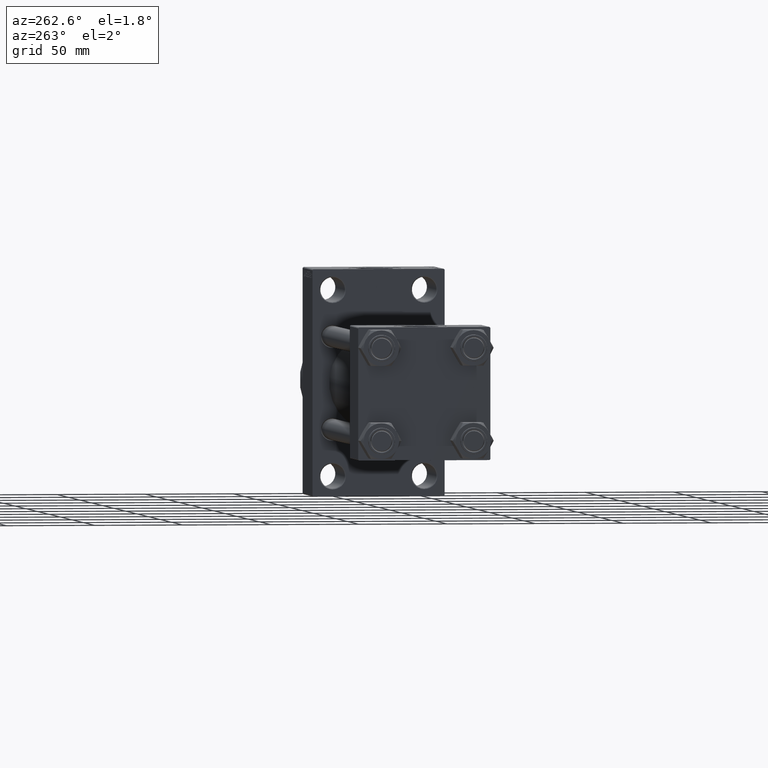
[diagram: clean part render]
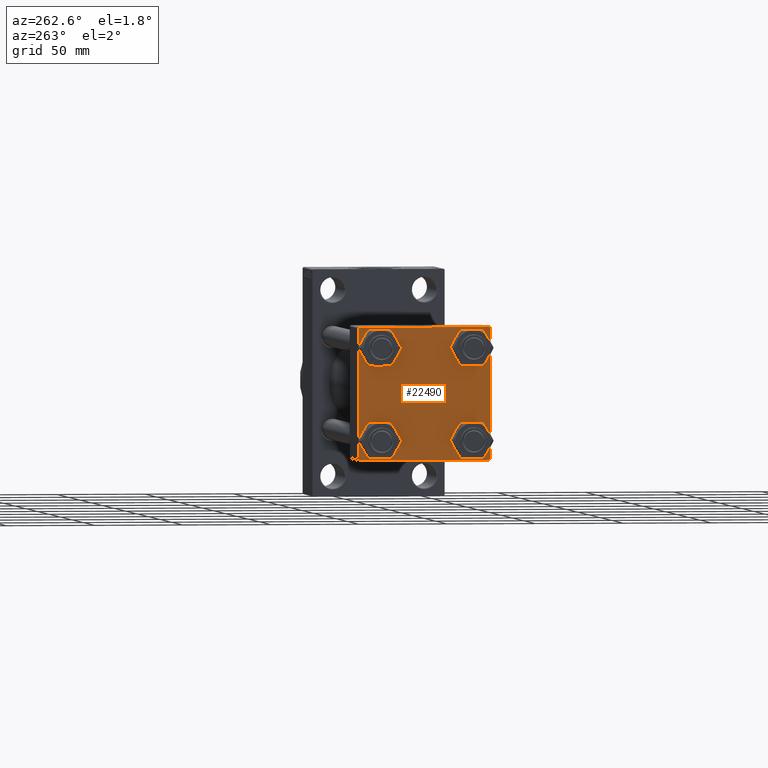
[diagram: same view with one face highlighted and labeled with its STEP entity id]
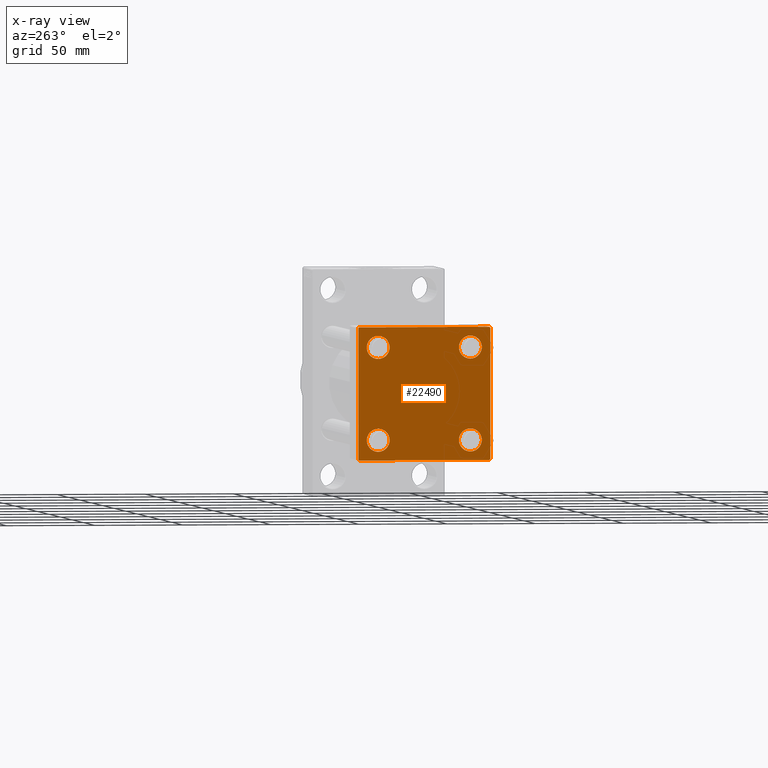
[diagram: x-ray of the same camera — body ghosted, the highlighted face saturated]
A machine part, auxiliary view. The second image highlights one B-rep face of the part: STEP entity #22490.
The next image is the same camera in x-ray: the body ghosted, the highlighted face saturated — about 0% of this face is hidden behind the body in this view.
In plain terms, the highlighted planar face has unit normal (-1, 0, 0).
Its self-contained STEP definition (entity closure, byte-faithful):
#503 = ORIENTED_EDGE ( 'NONE', *, *, #21971, .T. ) ;
#591 = CARTESIAN_POINT ( 'NONE',  ( -0.000000000000000000, -37.25000000000000000, 37.25000000000000000 ) ) ;
#804 = CARTESIAN_POINT ( 'NONE',  ( 0.000000000000000000, 37.24999999999999289, 37.24999999999999289 ) ) ;
#984 = CARTESIAN_POINT ( 'NONE',  ( 0.000000000000000000, 37.24999999999998579, -37.24999999999998579 ) ) ;
#1006 = EDGE_LOOP ( 'NONE', ( #4173, #27967 ) ) ;
#1472 = CARTESIAN_POINT ( 'NONE',  ( 0.000000000000000000, -26.14999999999999147, 26.15000000000000924 ) ) ;
#2064 = CARTESIAN_POINT ( 'NONE',  ( 0.000000000000000000, 37.49999999999999289, 37.50000000000000000 ) ) ;
#2426 = VERTEX_POINT ( 'NONE', #34218 ) ;
#3048 = ORIENTED_EDGE ( 'NONE', *, *, #31005, .T. ) ;
#3216 = AXIS2_PLACEMENT_3D ( 'NONE', #7047, #31184, #19744 ) ;
#4173 = ORIENTED_EDGE ( 'NONE', *, *, #48396, .T. ) ;
#4238 = DIRECTION ( 'NONE',  ( 0.000000000000000000, -1.000000000000000000, -9.251858538542972814E-17 ) ) ;
#4349 = DIRECTION ( 'NONE',  ( 0.000000000000000000, 0.000000000000000000, 1.000000000000000000 ) ) ;
#5038 = LINE ( 'NONE', #984, #25295 ) ;
#5102 = VERTEX_POINT ( 'NONE', #5643 ) ;
#5136 = CARTESIAN_POINT ( 'NONE',  ( 0.000000000000000000, -37.00000000000000711, 37.49999999999999289 ) ) ;
#5423 = CIRCLE ( 'NONE', #11925, 6.500000000000023093 ) ;
#5643 = CARTESIAN_POINT ( 'NONE',  ( 0.000000000000000000, 36.99999999999999289, 37.50000000000000000 ) ) ;
#5647 = CIRCLE ( 'NONE', #3216, 6.500000000000015987 ) ;
#5989 = ORIENTED_EDGE ( 'NONE', *, *, #42637, .T. ) ;
#6054 = VERTEX_POINT ( 'NONE', #19715 ) ;
#6074 = EDGE_LOOP ( 'NONE', ( #3048, #43371, #27669, #11724, #35175, #5989, #19296, #503 ) ) ;
#6772 = EDGE_CURVE ( 'NONE', #35332, #18292, #5647, .T. ) ;
#7047 = CARTESIAN_POINT ( 'NONE',  ( 0.000000000000000000, -26.14999999999999147, -26.15000000000000924 ) ) ;
#7497 = FACE_BOUND ( 'NONE', #47197, .T. ) ;
#8235 = VERTEX_POINT ( 'NONE', #17307 ) ;
#8774 = CARTESIAN_POINT ( 'NONE',  ( 0.000000000000000000, 37.49999999999999289, 37.50000000000000000 ) ) ;
#9216 = CIRCLE ( 'NONE', #43288, 6.500000000000023093 ) ;
#9868 = EDGE_CURVE ( 'NONE', #18292, #35332, #17086, .T. ) ;
#11051 = CIRCLE ( 'NONE', #48394, 6.500000000000023093 ) ;
#11127 = DIRECTION ( 'NONE',  ( 0.000000000000000000, 0.000000000000000000, 1.000000000000000000 ) ) ;
#11228 = DIRECTION ( 'NONE',  ( 1.000000000000000000, -0.000000000000000000, 0.000000000000000000 ) ) ;
#11724 = ORIENTED_EDGE ( 'NONE', *, *, #47566, .T. ) ;
#11925 = AXIS2_PLACEMENT_3D ( 'NONE', #31491, #30736, #46237 ) ;
#12053 = EDGE_LOOP ( 'NONE', ( #23452, #21699 ) ) ;
#12213 = EDGE_CURVE ( 'NONE', #33745, #34449, #5038, .T. ) ;
#12289 = CARTESIAN_POINT ( 'NONE',  ( 0.000000000000000000, -37.24999999999975842, -37.25000000000027001 ) ) ;
#12956 = CARTESIAN_POINT ( 'NONE',  ( 0.000000000000000000, 26.14999999999999858, -26.15000000000000213 ) ) ;
#13535 = CARTESIAN_POINT ( 'NONE',  ( 0.000000000000000000, 37.49999999999999289, -36.99999999999998579 ) ) ;
#14287 = CARTESIAN_POINT ( 'NONE',  ( 0.000000000000000000, -26.14999999999999147, 26.15000000000000924 ) ) ;
#14366 = FACE_BOUND ( 'NONE', #1006, .T. ) ;
#14403 = EDGE_LOOP ( 'NONE', ( #30084, #39954 ) ) ;
#15022 = CARTESIAN_POINT ( 'NONE',  ( 0.000000000000000000, -26.14999999999999147, 32.65000000000003411 ) ) ;
#15498 = VECTOR ( 'NONE', #4238, 1000.000000000000000 ) ;
#15600 = CIRCLE ( 'NONE', #37545, 6.500000000000015987 ) ;
#16077 = DIRECTION ( 'NONE',  ( -0.000000000000000000, 0.7071067811865474617, 0.7071067811865474617 ) ) ;
#16219 = DIRECTION ( 'NONE',  ( 0.000000000000000000, 0.000000000000000000, 1.000000000000000000 ) ) ;
#16419 = CARTESIAN_POINT ( 'NONE',  ( 0.000000000000000000, -26.14999999999999147, 19.64999999999999147 ) ) ;
#16965 = DIRECTION ( 'NONE',  ( 1.000000000000000000, -0.000000000000000000, 0.000000000000000000 ) ) ;
#17086 = CIRCLE ( 'NONE', #43074, 6.500000000000015987 ) ;
#17307 = CARTESIAN_POINT ( 'NONE',  ( 0.000000000000000000, 26.14999999999999858, 32.65000000000002700 ) ) ;
#17666 = EDGE_CURVE ( 'NONE', #2426, #20734, #15600, .T. ) ;
#18104 = DIRECTION ( 'NONE',  ( 0.000000000000000000, 0.000000000000000000, 1.000000000000000000 ) ) ;
#18186 = DIRECTION ( 'NONE',  ( -0.000000000000000000, 0.000000000000000000, 1.000000000000000000 ) ) ;
#18250 = VECTOR ( 'NONE', #38431, 1000.000000000000114 ) ;
#18275 = VECTOR ( 'NONE', #33073, 1000.000000000000000 ) ;
#18292 = VERTEX_POINT ( 'NONE', #31166 ) ;
#19172 = CARTESIAN_POINT ( 'NONE',  ( 0.000000000000000000, 26.14999999999999858, -26.15000000000000213 ) ) ;
#19296 = ORIENTED_EDGE ( 'NONE', *, *, #32482, .F. ) ;
#19577 = EDGE_CURVE ( 'NONE', #25111, #36257, #9216, .T. ) ;
#19715 = CARTESIAN_POINT ( 'NONE',  ( 0.000000000000000000, 37.49999999999999289, 37.00000000000000000 ) ) ;
#19744 = DIRECTION ( 'NONE',  ( 0.000000000000000000, 0.000000000000000000, 1.000000000000000000 ) ) ;
#19973 = LINE ( 'NONE', #8774, #43473 ) ;
#20734 = VERTEX_POINT ( 'NONE', #45609 ) ;
#21107 = DIRECTION ( 'NONE',  ( 1.000000000000000000, -0.000000000000000000, 0.000000000000000000 ) ) ;
#21623 = LINE ( 'NONE', #45240, #42543 ) ;
#21699 = ORIENTED_EDGE ( 'NONE', *, *, #6772, .T. ) ;
#21971 = EDGE_CURVE ( 'NONE', #5102, #6054, #23179, .T. ) ;
#22490 = ADVANCED_FACE ( 'NONE', ( #7497, #45626, #14366, #49447, #23000 ), #26064, .T. ) ;
#23000 = FACE_OUTER_BOUND ( 'NONE', #6074, .T. ) ;
#23179 = LINE ( 'NONE', #804, #18250 ) ;
#23452 = ORIENTED_EDGE ( 'NONE', *, *, #9868, .T. ) ;
#23913 = AXIS2_PLACEMENT_3D ( 'NONE', #41571, #41817, #18186 ) ;
#24295 = CARTESIAN_POINT ( 'NONE',  ( 0.000000000000000000, -26.14999999999999147, -32.65000000000002700 ) ) ;
#25111 = VERTEX_POINT ( 'NONE', #15022 ) ;
#25295 = VECTOR ( 'NONE', #47495, 1000.000000000000114 ) ;
#25434 = DIRECTION ( 'NONE',  ( 0.000000000000000000, 9.251858538542971581E-17, -1.000000000000000000 ) ) ;
#26064 = PLANE ( 'NONE',  #23913 ) ;
#26534 = ORIENTED_EDGE ( 'NONE', *, *, #19577, .T. ) ;
#26850 = VECTOR ( 'NONE', #35670, 1000.000000000000000 ) ;
#27353 = LINE ( 'NONE', #43592, #15498 ) ;
#27475 = VECTOR ( 'NONE', #16077, 1000.000000000000114 ) ;
#27669 = ORIENTED_EDGE ( 'NONE', *, *, #47286, .T. ) ;
#27967 = ORIENTED_EDGE ( 'NONE', *, *, #17666, .T. ) ;
#28131 = CIRCLE ( 'NONE', #31373, 6.500000000000023093 ) ;
#28520 = AXIS2_PLACEMENT_3D ( 'NONE', #19172, #37150, #40976 ) ;
#28919 = VERTEX_POINT ( 'NONE', #30675 ) ;
#30006 = EDGE_CURVE ( 'NONE', #40563, #28919, #21623, .T. ) ;
#30084 = ORIENTED_EDGE ( 'NONE', *, *, #34942, .T. ) ;
#30198 = CARTESIAN_POINT ( 'NONE',  ( 0.000000000000000000, -26.14999999999999147, -26.15000000000000924 ) ) ;
#30675 = CARTESIAN_POINT ( 'NONE',  ( 0.000000000000000000, -37.50000000000000000, -37.00000000000003553 ) ) ;
#30736 = DIRECTION ( 'NONE',  ( 1.000000000000000000, -0.000000000000000000, 0.000000000000000000 ) ) ;
#31005 = EDGE_CURVE ( 'NONE', #6054, #33745, #49568, .T. ) ;
#31166 = CARTESIAN_POINT ( 'NONE',  ( 0.000000000000000000, -26.14999999999999147, -19.64999999999999503 ) ) ;
#31184 = DIRECTION ( 'NONE',  ( 1.000000000000000000, -0.000000000000000000, 0.000000000000000000 ) ) ;
#31373 = AXIS2_PLACEMENT_3D ( 'NONE', #32290, #21107, #32801 ) ;
#31491 = CARTESIAN_POINT ( 'NONE',  ( 0.000000000000000000, 26.14999999999999858, 26.15000000000000213 ) ) ;
#31586 = CARTESIAN_POINT ( 'NONE',  ( 0.000000000000000000, -37.00000000000002132, -37.50000000000000711 ) ) ;
#32290 = CARTESIAN_POINT ( 'NONE',  ( 0.000000000000000000, 26.14999999999999858, 26.15000000000000213 ) ) ;
#32482 = EDGE_CURVE ( 'NONE', #5102, #44849, #19973, .T. ) ;
#32801 = DIRECTION ( 'NONE',  ( 0.000000000000000000, 0.000000000000000000, 1.000000000000000000 ) ) ;
#33073 = DIRECTION ( 'NONE',  ( 0.000000000000000000, 0.000000000000000000, -1.000000000000000000 ) ) ;
#33485 = EDGE_CURVE ( 'NONE', #36257, #25111, #11051, .T. ) ;
#33745 = VERTEX_POINT ( 'NONE', #13535 ) ;
#34218 = CARTESIAN_POINT ( 'NONE',  ( 0.000000000000000000, 26.14999999999999858, -32.65000000000001990 ) ) ;
#34449 = VERTEX_POINT ( 'NONE', #44347 ) ;
#34675 = EDGE_CURVE ( 'NONE', #42915, #8235, #28131, .T. ) ;
#34942 = EDGE_CURVE ( 'NONE', #8235, #42915, #5423, .T. ) ;
#35038 = CIRCLE ( 'NONE', #28520, 6.500000000000015987 ) ;
#35175 = ORIENTED_EDGE ( 'NONE', *, *, #30006, .F. ) ;
#35332 = VERTEX_POINT ( 'NONE', #24295 ) ;
#35424 = LINE ( 'NONE', #12289, #26850 ) ;
#35670 = DIRECTION ( 'NONE',  ( 0.000000000000000000, -0.7071067811865524577, 0.7071067811865426878 ) ) ;
#35726 = DIRECTION ( 'NONE',  ( 0.000000000000000000, -1.000000000000000000, -9.251858538542971581E-17 ) ) ;
#36257 = VERTEX_POINT ( 'NONE', #16419 ) ;
#36343 = DIRECTION ( 'NONE',  ( 1.000000000000000000, -0.000000000000000000, 0.000000000000000000 ) ) ;
#37150 = DIRECTION ( 'NONE',  ( 1.000000000000000000, -0.000000000000000000, 0.000000000000000000 ) ) ;
#37301 = CARTESIAN_POINT ( 'NONE',  ( 0.000000000000000000, 26.14999999999999858, 19.64999999999998437 ) ) ;
#37545 = AXIS2_PLACEMENT_3D ( 'NONE', #12956, #36343, #4349 ) ;
#38431 = DIRECTION ( 'NONE',  ( 0.000000000000000000, 0.7071067811865474617, -0.7071067811865474617 ) ) ;
#39241 = ORIENTED_EDGE ( 'NONE', *, *, #33485, .T. ) ;
#39954 = ORIENTED_EDGE ( 'NONE', *, *, #34675, .T. ) ;
#40563 = VERTEX_POINT ( 'NONE', #48830 ) ;
#40976 = DIRECTION ( 'NONE',  ( 0.000000000000000000, 0.000000000000000000, 1.000000000000000000 ) ) ;
#41571 = CARTESIAN_POINT ( 'NONE',  ( 0.000000000000000000, 0.000000000000000000, 0.000000000000000000 ) ) ;
#41817 = DIRECTION ( 'NONE',  ( -1.000000000000000000, 0.000000000000000000, -0.000000000000000000 ) ) ;
#41884 = DIRECTION ( 'NONE',  ( 1.000000000000000000, -0.000000000000000000, 0.000000000000000000 ) ) ;
#42543 = VECTOR ( 'NONE', #25434, 1000.000000000000000 ) ;
#42637 = EDGE_CURVE ( 'NONE', #40563, #44849, #46085, .T. ) ;
#42915 = VERTEX_POINT ( 'NONE', #37301 ) ;
#43074 = AXIS2_PLACEMENT_3D ( 'NONE', #30198, #41884, #11127 ) ;
#43288 = AXIS2_PLACEMENT_3D ( 'NONE', #14287, #11228, #18104 ) ;
#43371 = ORIENTED_EDGE ( 'NONE', *, *, #12213, .T. ) ;
#43473 = VECTOR ( 'NONE', #35726, 1000.000000000000000 ) ;
#43592 = CARTESIAN_POINT ( 'NONE',  ( 0.000000000000000000, 37.49999999999999289, -37.50000000000000000 ) ) ;
#44347 = CARTESIAN_POINT ( 'NONE',  ( 0.000000000000000000, 36.99999999999997868, -37.50000000000000000 ) ) ;
#44849 = VERTEX_POINT ( 'NONE', #5136 ) ;
#45240 = CARTESIAN_POINT ( 'NONE',  ( 0.000000000000000000, -37.50000000000000711, 37.49999999999999289 ) ) ;
#45609 = CARTESIAN_POINT ( 'NONE',  ( 0.000000000000000000, 26.14999999999999858, -19.64999999999998792 ) ) ;
#45626 = FACE_BOUND ( 'NONE', #12053, .T. ) ;
#46085 = LINE ( 'NONE', #591, #27475 ) ;
#46237 = DIRECTION ( 'NONE',  ( 0.000000000000000000, 0.000000000000000000, 1.000000000000000000 ) ) ;
#47197 = EDGE_LOOP ( 'NONE', ( #26534, #39241 ) ) ;
#47286 = EDGE_CURVE ( 'NONE', #34449, #48926, #27353, .T. ) ;
#47495 = DIRECTION ( 'NONE',  ( -0.000000000000000000, -0.7071067811865474617, -0.7071067811865474617 ) ) ;
#47566 = EDGE_CURVE ( 'NONE', #48926, #28919, #35424, .T. ) ;
#48394 = AXIS2_PLACEMENT_3D ( 'NONE', #1472, #16965, #16219 ) ;
#48396 = EDGE_CURVE ( 'NONE', #20734, #2426, #35038, .T. ) ;
#48830 = CARTESIAN_POINT ( 'NONE',  ( 0.000000000000000000, -37.50000000000000711, 36.99999999999999289 ) ) ;
#48926 = VERTEX_POINT ( 'NONE', #31586 ) ;
#49447 = FACE_BOUND ( 'NONE', #14403, .T. ) ;
#49568 = LINE ( 'NONE', #2064, #18275 ) ;